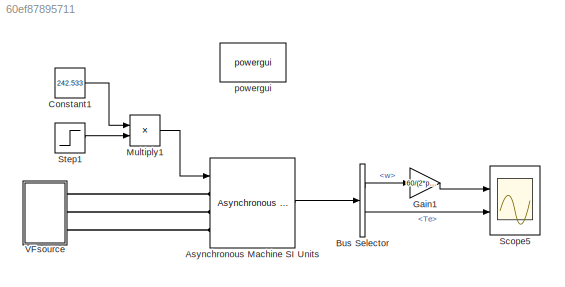
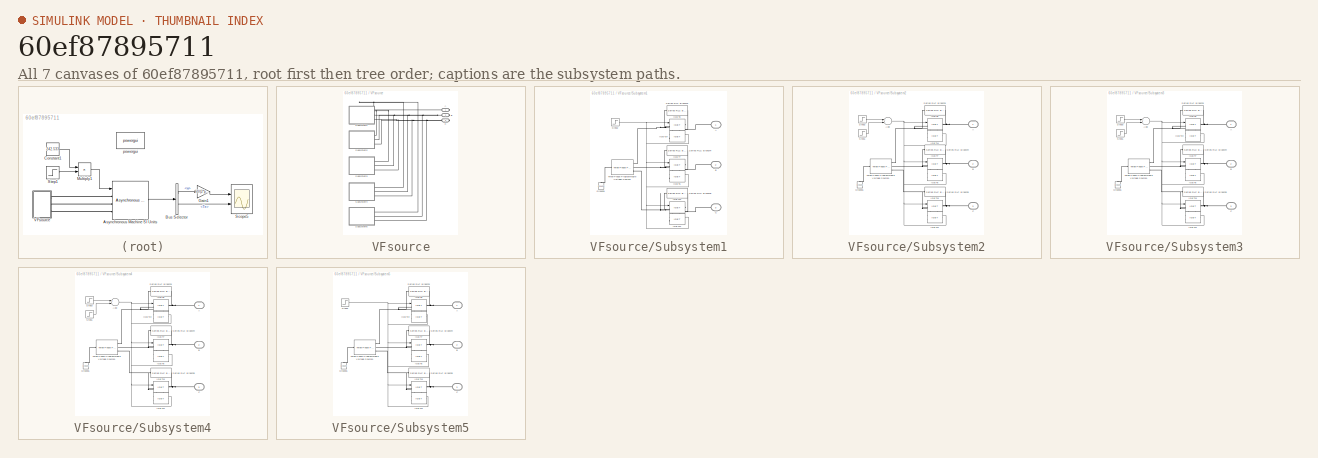
[diagram: thumbnail index - all 7 canvases of the model, root first then tree order]
MODEL slx_60ef87895711
KIND model
CONFIG AbsTol = auto
CONFIG EnableMultiTasking = on
CONFIG FixedStep = auto
CONFIG MaxStep = 10e-6
CONFIG MinStep = auto
CONFIG RelTol = 1e-4
CONFIG SampleTimeConstraint = Unconstrained
CONFIG Solver = ode23tb
CONFIG SolverName = ode23tb
CONFIG StartTime = 0.0
CONFIG StopTime = 10
BLOCK [Reference] Asynchronous Machine SI Units  REF=powerlib/Machines/Asynchronous Machine
SI Units
  AttributesFormatString = \n
  Ports = [1, 1, 0, 0, 0, 3]
  SourceBlock = powerlib/Machines/Asynchronous Machine\nSI Units
  SourceProductBaseCode = PS
  SourceProductName = Simscape Electrical
  SourceType = Asynchronous Machine
BLOCK [BusSelector] Bus Selector
  OutputAsBus = off
  OutputSignals = w,Te
  Ports = [1, 2]
BLOCK [Constant] Constant1
  SampleTime = Inf
  Value = 242.533
BLOCK [Gain] Gain1
  Gain = 60/(2*pi)
  OutDataTypeStr = Inherit: Inherit via internal rule
  ParamDataTypeStr = Inherit: Inherit via internal rule
  SaturateOnIntegerOverflow = off
BLOCK [Product] Multiply1
  InputSameDT = off
  OutDataTypeStr = Inherit: Inherit via internal rule
  Ports = [2, 1]
  RndMeth = Floor
  SaturateOnIntegerOverflow = off
BLOCK [Scope] Scope5
  Floating = off
  NumInputPorts = 2
  Ports = [2]
  ScopeSpecificationString = Simulink.scopes.TimeScopeBlockCfg('CurrentConfiguration', extmgr.ConfigurationSet(extmgr.Configuration('Core','General UI',true),extmgr.Configuration('Core','Source UI',true),extmgr.Configuration('Sources','WiredSimulink',true,'DataLoggingVariableName','ScopeData5'),extmgr.Configuration('Visuals','Time Domain',true,'SerializedDisplays',{struct('MinYLimReal','-223.28995','MaxYLimReal','1750.68556',...<+2047ch>
BLOCK [Step] Step1
  SampleTime = 0
BLOCK [SubSystem] VFsource
  Ports = [0, 0, 0, 0, 0, 0, 3]
  RequestExecContextInheritance = off
BLOCK [PMIOPort] VFsource/A
  Side = Right
BLOCK [PMIOPort] VFsource/B
  Port = 2
  Side = Right
BLOCK [PMIOPort] VFsource/C
  Port = 3
  Side = Right
BLOCK [SubSystem] VFsource/Subsystem1
  Ports = [0, 0, 0, 0, 0, 3]
  RequestExecContextInheritance = off
BLOCK [PMIOPort] VFsource/Subsystem1/A
  Side = Left
  Tag = PMCPort
BLOCK [PMIOPort] VFsource/Subsystem1/B
  Port = 2
  Side = Left
  Tag = PMCPort
BLOCK [PMIOPort] VFsource/Subsystem1/C
  Port = 3
  Side = Left
  Tag = PMCPort
BLOCK [Reference] VFsource/Subsystem1/Ground1  REF=powerlib/Elements/Ground
  Ports = [0, 0, 0, 0, 0, 1]
  SourceBlock = powerlib/Elements/Ground
  SourceProductBaseCode = PS
  SourceProductName = Simscape Electrical
  SourceType = Ground
BLOCK [Reference] VFsource/Subsystem1/IGBT12  REF=powerlib/Power
Electronics/IGBT
  Ports = [1, 0, 0, 0, 0, 1, 1]
  SourceBlock = powerlib/Power\nElectronics/IGBT
  SourceProductBaseCode = PS
  SourceProductName = Simscape Power Systems
  SourceType = IGBT
BLOCK [Reference] VFsource/Subsystem1/IGBT13  REF=powerlib/Power
Electronics/IGBT
  Ports = [1, 0, 0, 0, 0, 1, 1]
  SourceBlock = powerlib/Power\nElectronics/IGBT
  SourceProductBaseCode = PS
  SourceProductName = Simscape Power Systems
  SourceType = IGBT
BLOCK [Reference] VFsource/Subsystem1/IGBT14  REF=powerlib/Power
Electronics/IGBT
  Ports = [1, 0, 0, 0, 0, 1, 1]
  SourceBlock = powerlib/Power\nElectronics/IGBT
  SourceProductBaseCode = PS
  SourceProductName = Simscape Power Systems
  SourceType = IGBT
BLOCK [Reference] VFsource/Subsystem1/IGBT6  REF=powerlib/Power
Electronics/IGBT
  Ports = [1, 0, 0, 0, 0, 1, 1]
  SourceBlock = powerlib/Power\nElectronics/IGBT
  SourceProductBaseCode = PS
  SourceProductName = Simscape Power Systems
  SourceType = IGBT
BLOCK [Reference] VFsource/Subsystem1/IGBT7  REF=powerlib/Power
Electronics/IGBT
  Ports = [1, 0, 0, 0, 0, 1, 1]
  SourceBlock = powerlib/Power\nElectronics/IGBT
  SourceProductBaseCode = PS
  SourceProductName = Simscape Power Systems
  SourceType = IGBT
BLOCK [Reference] VFsource/Subsystem1/IGBT8  REF=powerlib/Power
Electronics/IGBT
  Ports = [1, 0, 0, 0, 0, 1, 1]
  SourceBlock = powerlib/Power\nElectronics/IGBT
  SourceProductBaseCode = PS
  SourceProductName = Simscape Power Systems
  SourceType = IGBT
BLOCK [Reference] VFsource/Subsystem1/Series RLC Branch3  REF=powerlib/Elements/Series RLC Branch
  Ports = [0, 0, 0, 0, 0, 1, 1]
  SourceBlock = powerlib/Elements/Series RLC Branch
  SourceProductBaseCode = PS
  SourceProductName = Simscape Power Systems
  SourceType = Series RLC Branch
BLOCK [Reference] VFsource/Subsystem1/Series RLC Branch4  REF=powerlib/Elements/Series RLC Branch
  Ports = [0, 0, 0, 0, 0, 1, 1]
  SourceBlock = powerlib/Elements/Series RLC Branch
  SourceProductBaseCode = PS
  SourceProductName = Simscape Power Systems
  SourceType = Series RLC Branch
BLOCK [Reference] VFsource/Subsystem1/Series RLC Branch5  REF=powerlib/Elements/Series RLC Branch
  Ports = [0, 0, 0, 0, 0, 1, 1]
  SourceBlock = powerlib/Elements/Series RLC Branch
  SourceProductBaseCode = PS
  SourceProductName = Simscape Power Systems
  SourceType = Series RLC Branch
BLOCK [Step] VFsource/Subsystem1/Step2
  After = 0
  Before = 1
  SampleTime = 0
  Time = 2
BLOCK [Reference] VFsource/Subsystem1/Three-Phase Programmable Voltage Source1  REF=powerlib/Electrical
Sources/Three-Phase
Programmable
Voltage Source
  Ports = [0, 0, 0, 0, 0, 1, 3]
  SourceBlock = powerlib/Electrical\nSources/Three-Phase\nProgrammable\nVoltage Source
  SourceProductBaseCode = PS
  SourceProductName = Simscape Electrical
  SourceType = Three-Phase Programmable Voltage Source
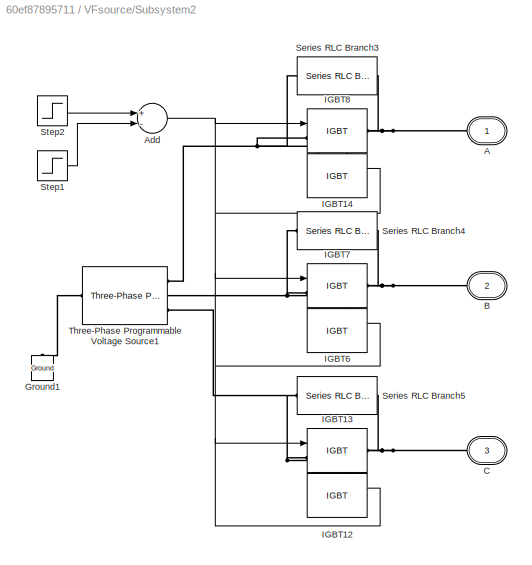
BLOCK [SubSystem] VFsource/Subsystem2
  Ports = [0, 0, 0, 0, 0, 3]
  RequestExecContextInheritance = off
BLOCK [PMIOPort] VFsource/Subsystem2/A
  Side = Left
  Tag = PMCPort
BLOCK [Sum] VFsource/Subsystem2/Add
  InputSameDT = off
  Inputs = +-
  OutDataTypeStr = Inherit: Inherit via internal rule
  Ports = [2, 1]
  SaturateOnIntegerOverflow = off
BLOCK [PMIOPort] VFsource/Subsystem2/B
  Port = 2
  Side = Left
  Tag = PMCPort
BLOCK [PMIOPort] VFsource/Subsystem2/C
  Port = 3
  Side = Left
  Tag = PMCPort
BLOCK [Reference] VFsource/Subsystem2/Ground1  REF=powerlib/Elements/Ground
  Ports = [0, 0, 0, 0, 0, 1]
  SourceBlock = powerlib/Elements/Ground
  SourceProductBaseCode = PS
  SourceProductName = Simscape Electrical
  SourceType = Ground
BLOCK [Reference] VFsource/Subsystem2/IGBT12  REF=powerlib/Power
Electronics/IGBT
  Ports = [1, 0, 0, 0, 0, 1, 1]
  SourceBlock = powerlib/Power\nElectronics/IGBT
  SourceProductBaseCode = PS
  SourceProductName = Simscape Power Systems
  SourceType = IGBT
BLOCK [Reference] VFsource/Subsystem2/IGBT13  REF=powerlib/Power
Electronics/IGBT
  Ports = [1, 0, 0, 0, 0, 1, 1]
  SourceBlock = powerlib/Power\nElectronics/IGBT
  SourceProductBaseCode = PS
  SourceProductName = Simscape Power Systems
  SourceType = IGBT
BLOCK [Reference] VFsource/Subsystem2/IGBT14  REF=powerlib/Power
Electronics/IGBT
  Ports = [1, 0, 0, 0, 0, 1, 1]
  SourceBlock = powerlib/Power\nElectronics/IGBT
  SourceProductBaseCode = PS
  SourceProductName = Simscape Power Systems
  SourceType = IGBT
BLOCK [Reference] VFsource/Subsystem2/IGBT6  REF=powerlib/Power
Electronics/IGBT
  Ports = [1, 0, 0, 0, 0, 1, 1]
  SourceBlock = powerlib/Power\nElectronics/IGBT
  SourceProductBaseCode = PS
  SourceProductName = Simscape Power Systems
  SourceType = IGBT
BLOCK [Reference] VFsource/Subsystem2/IGBT7  REF=powerlib/Power
Electronics/IGBT
  Ports = [1, 0, 0, 0, 0, 1, 1]
  SourceBlock = powerlib/Power\nElectronics/IGBT
  SourceProductBaseCode = PS
  SourceProductName = Simscape Power Systems
  SourceType = IGBT
BLOCK [Reference] VFsource/Subsystem2/IGBT8  REF=powerlib/Power
Electronics/IGBT
  Ports = [1, 0, 0, 0, 0, 1, 1]
  SourceBlock = powerlib/Power\nElectronics/IGBT
  SourceProductBaseCode = PS
  SourceProductName = Simscape Power Systems
  SourceType = IGBT
BLOCK [Reference] VFsource/Subsystem2/Series RLC Branch3  REF=powerlib/Elements/Series RLC Branch
  Ports = [0, 0, 0, 0, 0, 1, 1]
  SourceBlock = powerlib/Elements/Series RLC Branch
  SourceProductBaseCode = PS
  SourceProductName = Simscape Power Systems
  SourceType = Series RLC Branch
BLOCK [Reference] VFsource/Subsystem2/Series RLC Branch4  REF=powerlib/Elements/Series RLC Branch
  Ports = [0, 0, 0, 0, 0, 1, 1]
  SourceBlock = powerlib/Elements/Series RLC Branch
  SourceProductBaseCode = PS
  SourceProductName = Simscape Power Systems
  SourceType = Series RLC Branch
BLOCK [Reference] VFsource/Subsystem2/Series RLC Branch5  REF=powerlib/Elements/Series RLC Branch
  Ports = [0, 0, 0, 0, 0, 1, 1]
  SourceBlock = powerlib/Elements/Series RLC Branch
  SourceProductBaseCode = PS
  SourceProductName = Simscape Power Systems
  SourceType = Series RLC Branch
BLOCK [Step] VFsource/Subsystem2/Step1
  SampleTime = 0
  Time = 4
BLOCK [Step] VFsource/Subsystem2/Step2
  SampleTime = 0
  Time = 2
BLOCK [Reference] VFsource/Subsystem2/Three-Phase Programmable Voltage Source1  REF=powerlib/Electrical
Sources/Three-Phase
Programmable
Voltage Source
  Ports = [0, 0, 0, 0, 0, 1, 3]
  SourceBlock = powerlib/Electrical\nSources/Three-Phase\nProgrammable\nVoltage Source
  SourceProductBaseCode = PS
  SourceProductName = Simscape Electrical
  SourceType = Three-Phase Programmable Voltage Source
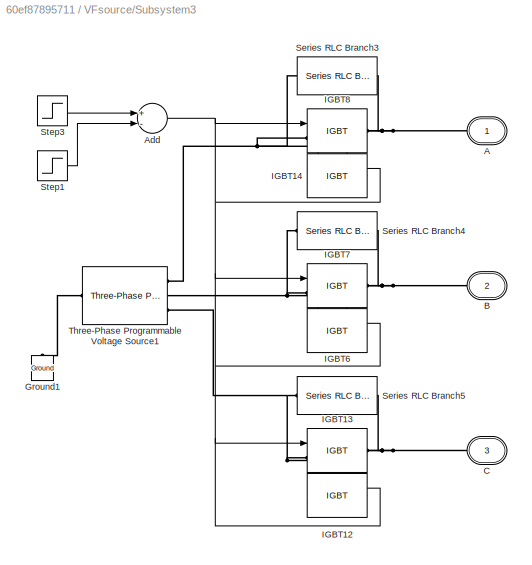
BLOCK [SubSystem] VFsource/Subsystem3
  Ports = [0, 0, 0, 0, 0, 3]
  RequestExecContextInheritance = off
BLOCK [PMIOPort] VFsource/Subsystem3/A
  Side = Left
  Tag = PMCPort
BLOCK [Sum] VFsource/Subsystem3/Add
  InputSameDT = off
  Inputs = +-
  OutDataTypeStr = Inherit: Inherit via internal rule
  Ports = [2, 1]
  SaturateOnIntegerOverflow = off
BLOCK [PMIOPort] VFsource/Subsystem3/B
  Port = 2
  Side = Left
  Tag = PMCPort
BLOCK [PMIOPort] VFsource/Subsystem3/C
  Port = 3
  Side = Left
  Tag = PMCPort
BLOCK [Reference] VFsource/Subsystem3/Ground1  REF=powerlib/Elements/Ground
  Ports = [0, 0, 0, 0, 0, 1]
  SourceBlock = powerlib/Elements/Ground
  SourceProductBaseCode = PS
  SourceProductName = Simscape Electrical
  SourceType = Ground
BLOCK [Reference] VFsource/Subsystem3/IGBT12  REF=powerlib/Power
Electronics/IGBT
  Ports = [1, 0, 0, 0, 0, 1, 1]
  SourceBlock = powerlib/Power\nElectronics/IGBT
  SourceProductBaseCode = PS
  SourceProductName = Simscape Power Systems
  SourceType = IGBT
BLOCK [Reference] VFsource/Subsystem3/IGBT13  REF=powerlib/Power
Electronics/IGBT
  Ports = [1, 0, 0, 0, 0, 1, 1]
  SourceBlock = powerlib/Power\nElectronics/IGBT
  SourceProductBaseCode = PS
  SourceProductName = Simscape Power Systems
  SourceType = IGBT
BLOCK [Reference] VFsource/Subsystem3/IGBT14  REF=powerlib/Power
Electronics/IGBT
  Ports = [1, 0, 0, 0, 0, 1, 1]
  SourceBlock = powerlib/Power\nElectronics/IGBT
  SourceProductBaseCode = PS
  SourceProductName = Simscape Power Systems
  SourceType = IGBT
BLOCK [Reference] VFsource/Subsystem3/IGBT6  REF=powerlib/Power
Electronics/IGBT
  Ports = [1, 0, 0, 0, 0, 1, 1]
  SourceBlock = powerlib/Power\nElectronics/IGBT
  SourceProductBaseCode = PS
  SourceProductName = Simscape Power Systems
  SourceType = IGBT
BLOCK [Reference] VFsource/Subsystem3/IGBT7  REF=powerlib/Power
Electronics/IGBT
  Ports = [1, 0, 0, 0, 0, 1, 1]
  SourceBlock = powerlib/Power\nElectronics/IGBT
  SourceProductBaseCode = PS
  SourceProductName = Simscape Power Systems
  SourceType = IGBT
BLOCK [Reference] VFsource/Subsystem3/IGBT8  REF=powerlib/Power
Electronics/IGBT
  Ports = [1, 0, 0, 0, 0, 1, 1]
  SourceBlock = powerlib/Power\nElectronics/IGBT
  SourceProductBaseCode = PS
  SourceProductName = Simscape Power Systems
  SourceType = IGBT
BLOCK [Reference] VFsource/Subsystem3/Series RLC Branch3  REF=powerlib/Elements/Series RLC Branch
  Ports = [0, 0, 0, 0, 0, 1, 1]
  SourceBlock = powerlib/Elements/Series RLC Branch
  SourceProductBaseCode = PS
  SourceProductName = Simscape Power Systems
  SourceType = Series RLC Branch
BLOCK [Reference] VFsource/Subsystem3/Series RLC Branch4  REF=powerlib/Elements/Series RLC Branch
  Ports = [0, 0, 0, 0, 0, 1, 1]
  SourceBlock = powerlib/Elements/Series RLC Branch
  SourceProductBaseCode = PS
  SourceProductName = Simscape Power Systems
  SourceType = Series RLC Branch
BLOCK [Reference] VFsource/Subsystem3/Series RLC Branch5  REF=powerlib/Elements/Series RLC Branch
  Ports = [0, 0, 0, 0, 0, 1, 1]
  SourceBlock = powerlib/Elements/Series RLC Branch
  SourceProductBaseCode = PS
  SourceProductName = Simscape Power Systems
  SourceType = Series RLC Branch
BLOCK [Step] VFsource/Subsystem3/Step1
  SampleTime = 0
  Time = 6
BLOCK [Step] VFsource/Subsystem3/Step3
  SampleTime = 0
  Time = 4
BLOCK [Reference] VFsource/Subsystem3/Three-Phase Programmable Voltage Source1  REF=powerlib/Electrical
Sources/Three-Phase
Programmable
Voltage Source
  Ports = [0, 0, 0, 0, 0, 1, 3]
  SourceBlock = powerlib/Electrical\nSources/Three-Phase\nProgrammable\nVoltage Source
  SourceProductBaseCode = PS
  SourceProductName = Simscape Electrical
  SourceType = Three-Phase Programmable Voltage Source
BLOCK [SubSystem] VFsource/Subsystem4
  Ports = [0, 0, 0, 0, 0, 3]
  RequestExecContextInheritance = off
BLOCK [PMIOPort] VFsource/Subsystem4/A
  Side = Left
  Tag = PMCPort
BLOCK [Sum] VFsource/Subsystem4/Add
  InputSameDT = off
  Inputs = +-
  OutDataTypeStr = Inherit: Inherit via internal rule
  Ports = [2, 1]
  SaturateOnIntegerOverflow = off
BLOCK [PMIOPort] VFsource/Subsystem4/B
  Port = 2
  Side = Left
  Tag = PMCPort
BLOCK [PMIOPort] VFsource/Subsystem4/C
  Port = 3
  Side = Left
  Tag = PMCPort
BLOCK [Reference] VFsource/Subsystem4/Ground1  REF=powerlib/Elements/Ground
  Ports = [0, 0, 0, 0, 0, 1]
  SourceBlock = powerlib/Elements/Ground
  SourceProductBaseCode = PS
  SourceProductName = Simscape Electrical
  SourceType = Ground
BLOCK [Reference] VFsource/Subsystem4/IGBT12  REF=powerlib/Power
Electronics/IGBT
  Ports = [1, 0, 0, 0, 0, 1, 1]
  SourceBlock = powerlib/Power\nElectronics/IGBT
  SourceProductBaseCode = PS
  SourceProductName = Simscape Power Systems
  SourceType = IGBT
BLOCK [Reference] VFsource/Subsystem4/IGBT13  REF=powerlib/Power
Electronics/IGBT
  Ports = [1, 0, 0, 0, 0, 1, 1]
  SourceBlock = powerlib/Power\nElectronics/IGBT
  SourceProductBaseCode = PS
  SourceProductName = Simscape Power Systems
  SourceType = IGBT
BLOCK [Reference] VFsource/Subsystem4/IGBT14  REF=powerlib/Power
Electronics/IGBT
  Ports = [1, 0, 0, 0, 0, 1, 1]
  SourceBlock = powerlib/Power\nElectronics/IGBT
  SourceProductBaseCode = PS
  SourceProductName = Simscape Power Systems
  SourceType = IGBT
BLOCK [Reference] VFsource/Subsystem4/IGBT6  REF=powerlib/Power
Electronics/IGBT
  Ports = [1, 0, 0, 0, 0, 1, 1]
  SourceBlock = powerlib/Power\nElectronics/IGBT
  SourceProductBaseCode = PS
  SourceProductName = Simscape Power Systems
  SourceType = IGBT
BLOCK [Reference] VFsource/Subsystem4/IGBT7  REF=powerlib/Power
Electronics/IGBT
  Ports = [1, 0, 0, 0, 0, 1, 1]
  SourceBlock = powerlib/Power\nElectronics/IGBT
  SourceProductBaseCode = PS
  SourceProductName = Simscape Power Systems
  SourceType = IGBT
BLOCK [Reference] VFsource/Subsystem4/IGBT8  REF=powerlib/Power
Electronics/IGBT
  Ports = [1, 0, 0, 0, 0, 1, 1]
  SourceBlock = powerlib/Power\nElectronics/IGBT
  SourceProductBaseCode = PS
  SourceProductName = Simscape Power Systems
  SourceType = IGBT
BLOCK [Reference] VFsource/Subsystem4/Series RLC Branch3  REF=powerlib/Elements/Series RLC Branch
  Ports = [0, 0, 0, 0, 0, 1, 1]
  SourceBlock = powerlib/Elements/Series RLC Branch
  SourceProductBaseCode = PS
  SourceProductName = Simscape Power Systems
  SourceType = Series RLC Branch
BLOCK [Reference] VFsource/Subsystem4/Series RLC Branch4  REF=powerlib/Elements/Series RLC Branch
  Ports = [0, 0, 0, 0, 0, 1, 1]
  SourceBlock = powerlib/Elements/Series RLC Branch
  SourceProductBaseCode = PS
  SourceProductName = Simscape Power Systems
  SourceType = Series RLC Branch
BLOCK [Reference] VFsource/Subsystem4/Series RLC Branch5  REF=powerlib/Elements/Series RLC Branch
  Ports = [0, 0, 0, 0, 0, 1, 1]
  SourceBlock = powerlib/Elements/Series RLC Branch
  SourceProductBaseCode = PS
  SourceProductName = Simscape Power Systems
  SourceType = Series RLC Branch
BLOCK [Step] VFsource/Subsystem4/Step1
  SampleTime = 0
  Time = 8
BLOCK [Step] VFsource/Subsystem4/Step3
  SampleTime = 0
  Time = 6
BLOCK [Reference] VFsource/Subsystem4/Three-Phase Programmable Voltage Source1  REF=powerlib/Electrical
Sources/Three-Phase
Programmable
Voltage Source
  Ports = [0, 0, 0, 0, 0, 1, 3]
  SourceBlock = powerlib/Electrical\nSources/Three-Phase\nProgrammable\nVoltage Source
  SourceProductBaseCode = PS
  SourceProductName = Simscape Electrical
  SourceType = Three-Phase Programmable Voltage Source
BLOCK [SubSystem] VFsource/Subsystem5
  Ports = [0, 0, 0, 0, 0, 3]
  RequestExecContextInheritance = off
BLOCK [PMIOPort] VFsource/Subsystem5/A
  Side = Left
  Tag = PMCPort
BLOCK [PMIOPort] VFsource/Subsystem5/B
  Port = 2
  Side = Left
  Tag = PMCPort
BLOCK [PMIOPort] VFsource/Subsystem5/C
  Port = 3
  Side = Left
  Tag = PMCPort
BLOCK [Reference] VFsource/Subsystem5/Ground1  REF=powerlib/Elements/Ground
  Ports = [0, 0, 0, 0, 0, 1]
  SourceBlock = powerlib/Elements/Ground
  SourceProductBaseCode = PS
  SourceProductName = Simscape Electrical
  SourceType = Ground
BLOCK [Reference] VFsource/Subsystem5/IGBT12  REF=powerlib/Power
Electronics/IGBT
  Ports = [1, 0, 0, 0, 0, 1, 1]
  SourceBlock = powerlib/Power\nElectronics/IGBT
  SourceProductBaseCode = PS
  SourceProductName = Simscape Power Systems
  SourceType = IGBT
BLOCK [Reference] VFsource/Subsystem5/IGBT13  REF=powerlib/Power
Electronics/IGBT
  Ports = [1, 0, 0, 0, 0, 1, 1]
  SourceBlock = powerlib/Power\nElectronics/IGBT
  SourceProductBaseCode = PS
  SourceProductName = Simscape Power Systems
  SourceType = IGBT
BLOCK [Reference] VFsource/Subsystem5/IGBT14  REF=powerlib/Power
Electronics/IGBT
  Ports = [1, 0, 0, 0, 0, 1, 1]
  SourceBlock = powerlib/Power\nElectronics/IGBT
  SourceProductBaseCode = PS
  SourceProductName = Simscape Power Systems
  SourceType = IGBT
BLOCK [Reference] VFsource/Subsystem5/IGBT6  REF=powerlib/Power
Electronics/IGBT
  Ports = [1, 0, 0, 0, 0, 1, 1]
  SourceBlock = powerlib/Power\nElectronics/IGBT
  SourceProductBaseCode = PS
  SourceProductName = Simscape Power Systems
  SourceType = IGBT
BLOCK [Reference] VFsource/Subsystem5/IGBT7  REF=powerlib/Power
Electronics/IGBT
  Ports = [1, 0, 0, 0, 0, 1, 1]
  SourceBlock = powerlib/Power\nElectronics/IGBT
  SourceProductBaseCode = PS
  SourceProductName = Simscape Power Systems
  SourceType = IGBT
BLOCK [Reference] VFsource/Subsystem5/IGBT8  REF=powerlib/Power
Electronics/IGBT
  Ports = [1, 0, 0, 0, 0, 1, 1]
  SourceBlock = powerlib/Power\nElectronics/IGBT
  SourceProductBaseCode = PS
  SourceProductName = Simscape Power Systems
  SourceType = IGBT
BLOCK [Reference] VFsource/Subsystem5/Series RLC Branch3  REF=powerlib/Elements/Series RLC Branch
  Ports = [0, 0, 0, 0, 0, 1, 1]
  SourceBlock = powerlib/Elements/Series RLC Branch
  SourceProductBaseCode = PS
  SourceProductName = Simscape Power Systems
  SourceType = Series RLC Branch
BLOCK [Reference] VFsource/Subsystem5/Series RLC Branch4  REF=powerlib/Elements/Series RLC Branch
  Ports = [0, 0, 0, 0, 0, 1, 1]
  SourceBlock = powerlib/Elements/Series RLC Branch
  SourceProductBaseCode = PS
  SourceProductName = Simscape Power Systems
  SourceType = Series RLC Branch
BLOCK [Reference] VFsource/Subsystem5/Series RLC Branch5  REF=powerlib/Elements/Series RLC Branch
  Ports = [0, 0, 0, 0, 0, 1, 1]
  SourceBlock = powerlib/Elements/Series RLC Branch
  SourceProductBaseCode = PS
  SourceProductName = Simscape Power Systems
  SourceType = Series RLC Branch
BLOCK [Step] VFsource/Subsystem5/Step3
  SampleTime = 0
  Time = 8
BLOCK [Reference] VFsource/Subsystem5/Three-Phase Programmable Voltage Source1  REF=powerlib/Electrical
Sources/Three-Phase
Programmable
Voltage Source
  Ports = [0, 0, 0, 0, 0, 1, 3]
  SourceBlock = powerlib/Electrical\nSources/Three-Phase\nProgrammable\nVoltage Source
  SourceProductBaseCode = PS
  SourceProductName = Simscape Electrical
  SourceType = Three-Phase Programmable Voltage Source
BLOCK [Reference] powergui  REF=powerlib/powergui
  Ports = []
  Priority = 1
  SourceBlock = powerlib/powergui
  SourceProductBaseCode = PS
  SourceProductName = Simscape Power Systems
  SourceType = PSB option menu block
LINE Asynchronous Machine SI Units:1 -> Bus Selector:1
LINE Bus Selector:1 -> Gain1:1
LINE Bus Selector:2 -> Scope5:2
LINE Constant1:1 -> Multiply1:1
LINE Gain1:1 -> Scope5:1
LINE Multiply1:1 -> Asynchronous Machine SI Units:1
LINE Step1:1 -> Multiply1:2
NET VFsource/Subsystem1/Step2:1 -> VFsource/Subsystem1/IGBT12:1, VFsource/Subsystem1/IGBT13:1, VFsource/Subsystem1/IGBT14:1, VFsource/Subsystem1/IGBT6:1, VFsource/Subsystem1/IGBT7:1, VFsource/Subsystem1/IGBT8:1
NET VFsource/Subsystem2/Add:1 -> VFsource/Subsystem2/IGBT12:1, VFsource/Subsystem2/IGBT13:1, VFsource/Subsystem2/IGBT14:1, VFsource/Subsystem2/IGBT6:1, VFsource/Subsystem2/IGBT7:1, VFsource/Subsystem2/IGBT8:1
LINE VFsource/Subsystem2/Step1:1 -> VFsource/Subsystem2/Add:2
LINE VFsource/Subsystem2/Step2:1 -> VFsource/Subsystem2/Add:1
NET VFsource/Subsystem3/Add:1 -> VFsource/Subsystem3/IGBT12:1, VFsource/Subsystem3/IGBT13:1, VFsource/Subsystem3/IGBT14:1, VFsource/Subsystem3/IGBT6:1, VFsource/Subsystem3/IGBT7:1, VFsource/Subsystem3/IGBT8:1
LINE VFsource/Subsystem3/Step1:1 -> VFsource/Subsystem3/Add:2
LINE VFsource/Subsystem3/Step3:1 -> VFsource/Subsystem3/Add:1
NET VFsource/Subsystem4/Add:1 -> VFsource/Subsystem4/IGBT12:1, VFsource/Subsystem4/IGBT13:1, VFsource/Subsystem4/IGBT14:1, VFsource/Subsystem4/IGBT6:1, VFsource/Subsystem4/IGBT7:1, VFsource/Subsystem4/IGBT8:1
LINE VFsource/Subsystem4/Step1:1 -> VFsource/Subsystem4/Add:2
LINE VFsource/Subsystem4/Step3:1 -> VFsource/Subsystem4/Add:1
NET VFsource/Subsystem5/Step3:1 -> VFsource/Subsystem5/IGBT12:1, VFsource/Subsystem5/IGBT13:1, VFsource/Subsystem5/IGBT14:1, VFsource/Subsystem5/IGBT6:1, VFsource/Subsystem5/IGBT7:1, VFsource/Subsystem5/IGBT8:1
PLINE Asynchronous Machine SI Units:LConn1 -- VFsource:RConn1
PLINE Asynchronous Machine SI Units:LConn2 -- VFsource:RConn2
PLINE Asynchronous Machine SI Units:LConn3 -- VFsource:RConn3
PNET net1: VFsource/A:RConn1 -- VFsource/Subsystem1:LConn1 -- VFsource/Subsystem2:LConn1 -- VFsource/Subsystem3:LConn1 -- VFsource/Subsystem4:LConn1 -- VFsource/Subsystem5:LConn1
PNET net2: VFsource/B:RConn1 -- VFsource/Subsystem1:LConn2 -- VFsource/Subsystem2:LConn2 -- VFsource/Subsystem3:LConn2 -- VFsource/Subsystem4:LConn2 -- VFsource/Subsystem5:LConn2
PNET net3: VFsource/C:RConn1 -- VFsource/Subsystem1:LConn3 -- VFsource/Subsystem2:LConn3 -- VFsource/Subsystem3:LConn3 -- VFsource/Subsystem4:LConn3 -- VFsource/Subsystem5:LConn3
PNET net4: VFsource/Subsystem1/A:RConn1 -- VFsource/Subsystem1/IGBT14:LConn1 -- VFsource/Subsystem1/IGBT8:RConn1 -- VFsource/Subsystem1/Series RLC Branch3:RConn1
PNET net5: VFsource/Subsystem1/B:RConn1 -- VFsource/Subsystem1/IGBT6:LConn1 -- VFsource/Subsystem1/IGBT7:RConn1 -- VFsource/Subsystem1/Series RLC Branch4:RConn1
PNET net6: VFsource/Subsystem1/C:RConn1 -- VFsource/Subsystem1/IGBT12:LConn1 -- VFsource/Subsystem1/IGBT13:RConn1 -- VFsource/Subsystem1/Series RLC Branch5:RConn1
PLINE VFsource/Subsystem1/Ground1:LConn1 -- VFsource/Subsystem1/Three-Phase Programmable Voltage Source1:LConn1
PNET net7: VFsource/Subsystem1/IGBT12:RConn1 -- VFsource/Subsystem1/IGBT13:LConn1 -- VFsource/Subsystem1/Series RLC Branch5:LConn1 -- VFsource/Subsystem1/Three-Phase Programmable Voltage Source1:RConn3
PNET net8: VFsource/Subsystem1/IGBT14:RConn1 -- VFsource/Subsystem1/IGBT8:LConn1 -- VFsource/Subsystem1/Series RLC Branch3:LConn1 -- VFsource/Subsystem1/Three-Phase Programmable Voltage Source1:RConn1
PNET net9: VFsource/Subsystem1/IGBT6:RConn1 -- VFsource/Subsystem1/IGBT7:LConn1 -- VFsource/Subsystem1/Series RLC Branch4:LConn1 -- VFsource/Subsystem1/Three-Phase Programmable Voltage Source1:RConn2
PNET net10: VFsource/Subsystem2/A:RConn1 -- VFsource/Subsystem2/IGBT14:LConn1 -- VFsource/Subsystem2/IGBT8:RConn1 -- VFsource/Subsystem2/Series RLC Branch3:RConn1
PNET net11: VFsource/Subsystem2/B:RConn1 -- VFsource/Subsystem2/IGBT6:LConn1 -- VFsource/Subsystem2/IGBT7:RConn1 -- VFsource/Subsystem2/Series RLC Branch4:RConn1
PNET net12: VFsource/Subsystem2/C:RConn1 -- VFsource/Subsystem2/IGBT12:LConn1 -- VFsource/Subsystem2/IGBT13:RConn1 -- VFsource/Subsystem2/Series RLC Branch5:RConn1
PLINE VFsource/Subsystem2/Ground1:LConn1 -- VFsource/Subsystem2/Three-Phase Programmable Voltage Source1:LConn1
PNET net13: VFsource/Subsystem2/IGBT12:RConn1 -- VFsource/Subsystem2/IGBT13:LConn1 -- VFsource/Subsystem2/Series RLC Branch5:LConn1 -- VFsource/Subsystem2/Three-Phase Programmable Voltage Source1:RConn3
PNET net14: VFsource/Subsystem2/IGBT14:RConn1 -- VFsource/Subsystem2/IGBT8:LConn1 -- VFsource/Subsystem2/Series RLC Branch3:LConn1 -- VFsource/Subsystem2/Three-Phase Programmable Voltage Source1:RConn1
PNET net15: VFsource/Subsystem2/IGBT6:RConn1 -- VFsource/Subsystem2/IGBT7:LConn1 -- VFsource/Subsystem2/Series RLC Branch4:LConn1 -- VFsource/Subsystem2/Three-Phase Programmable Voltage Source1:RConn2
PNET net16: VFsource/Subsystem3/A:RConn1 -- VFsource/Subsystem3/IGBT14:LConn1 -- VFsource/Subsystem3/IGBT8:RConn1 -- VFsource/Subsystem3/Series RLC Branch3:RConn1
PNET net17: VFsource/Subsystem3/B:RConn1 -- VFsource/Subsystem3/IGBT6:LConn1 -- VFsource/Subsystem3/IGBT7:RConn1 -- VFsource/Subsystem3/Series RLC Branch4:RConn1
PNET net18: VFsource/Subsystem3/C:RConn1 -- VFsource/Subsystem3/IGBT12:LConn1 -- VFsource/Subsystem3/IGBT13:RConn1 -- VFsource/Subsystem3/Series RLC Branch5:RConn1
PLINE VFsource/Subsystem3/Ground1:LConn1 -- VFsource/Subsystem3/Three-Phase Programmable Voltage Source1:LConn1
PNET net19: VFsource/Subsystem3/IGBT12:RConn1 -- VFsource/Subsystem3/IGBT13:LConn1 -- VFsource/Subsystem3/Series RLC Branch5:LConn1 -- VFsource/Subsystem3/Three-Phase Programmable Voltage Source1:RConn3
PNET net20: VFsource/Subsystem3/IGBT14:RConn1 -- VFsource/Subsystem3/IGBT8:LConn1 -- VFsource/Subsystem3/Series RLC Branch3:LConn1 -- VFsource/Subsystem3/Three-Phase Programmable Voltage Source1:RConn1
PNET net21: VFsource/Subsystem3/IGBT6:RConn1 -- VFsource/Subsystem3/IGBT7:LConn1 -- VFsource/Subsystem3/Series RLC Branch4:LConn1 -- VFsource/Subsystem3/Three-Phase Programmable Voltage Source1:RConn2
PNET net22: VFsource/Subsystem4/A:RConn1 -- VFsource/Subsystem4/IGBT14:LConn1 -- VFsource/Subsystem4/IGBT8:RConn1 -- VFsource/Subsystem4/Series RLC Branch3:RConn1
PNET net23: VFsource/Subsystem4/B:RConn1 -- VFsource/Subsystem4/IGBT6:LConn1 -- VFsource/Subsystem4/IGBT7:RConn1 -- VFsource/Subsystem4/Series RLC Branch4:RConn1
PNET net24: VFsource/Subsystem4/C:RConn1 -- VFsource/Subsystem4/IGBT12:LConn1 -- VFsource/Subsystem4/IGBT13:RConn1 -- VFsource/Subsystem4/Series RLC Branch5:RConn1
PLINE VFsource/Subsystem4/Ground1:LConn1 -- VFsource/Subsystem4/Three-Phase Programmable Voltage Source1:LConn1
PNET net25: VFsource/Subsystem4/IGBT12:RConn1 -- VFsource/Subsystem4/IGBT13:LConn1 -- VFsource/Subsystem4/Series RLC Branch5:LConn1 -- VFsource/Subsystem4/Three-Phase Programmable Voltage Source1:RConn3
PNET net26: VFsource/Subsystem4/IGBT14:RConn1 -- VFsource/Subsystem4/IGBT8:LConn1 -- VFsource/Subsystem4/Series RLC Branch3:LConn1 -- VFsource/Subsystem4/Three-Phase Programmable Voltage Source1:RConn1
PNET net27: VFsource/Subsystem4/IGBT6:RConn1 -- VFsource/Subsystem4/IGBT7:LConn1 -- VFsource/Subsystem4/Series RLC Branch4:LConn1 -- VFsource/Subsystem4/Three-Phase Programmable Voltage Source1:RConn2
PNET net28: VFsource/Subsystem5/A:RConn1 -- VFsource/Subsystem5/IGBT14:LConn1 -- VFsource/Subsystem5/IGBT8:RConn1 -- VFsource/Subsystem5/Series RLC Branch3:RConn1
PNET net29: VFsource/Subsystem5/B:RConn1 -- VFsource/Subsystem5/IGBT6:LConn1 -- VFsource/Subsystem5/IGBT7:RConn1 -- VFsource/Subsystem5/Series RLC Branch4:RConn1
PNET net30: VFsource/Subsystem5/C:RConn1 -- VFsource/Subsystem5/IGBT12:LConn1 -- VFsource/Subsystem5/IGBT13:RConn1 -- VFsource/Subsystem5/Series RLC Branch5:RConn1
PLINE VFsource/Subsystem5/Ground1:LConn1 -- VFsource/Subsystem5/Three-Phase Programmable Voltage Source1:LConn1
PNET net31: VFsource/Subsystem5/IGBT12:RConn1 -- VFsource/Subsystem5/IGBT13:LConn1 -- VFsource/Subsystem5/Series RLC Branch5:LConn1 -- VFsource/Subsystem5/Three-Phase Programmable Voltage Source1:RConn3
PNET net32: VFsource/Subsystem5/IGBT14:RConn1 -- VFsource/Subsystem5/IGBT8:LConn1 -- VFsource/Subsystem5/Series RLC Branch3:LConn1 -- VFsource/Subsystem5/Three-Phase Programmable Voltage Source1:RConn1
PNET net33: VFsource/Subsystem5/IGBT6:RConn1 -- VFsource/Subsystem5/IGBT7:LConn1 -- VFsource/Subsystem5/Series RLC Branch4:LConn1 -- VFsource/Subsystem5/Three-Phase Programmable Voltage Source1:RConn2
note: NET lines group one-source signal fan-out (src -> all destinations, sorted); 1:1 wires keep LINE; PNET lines group multi-terminal physical nets as a canonical sorted terminal list (undirected conserving connections); 2-terminal nets keep the pairwise PLINE form
